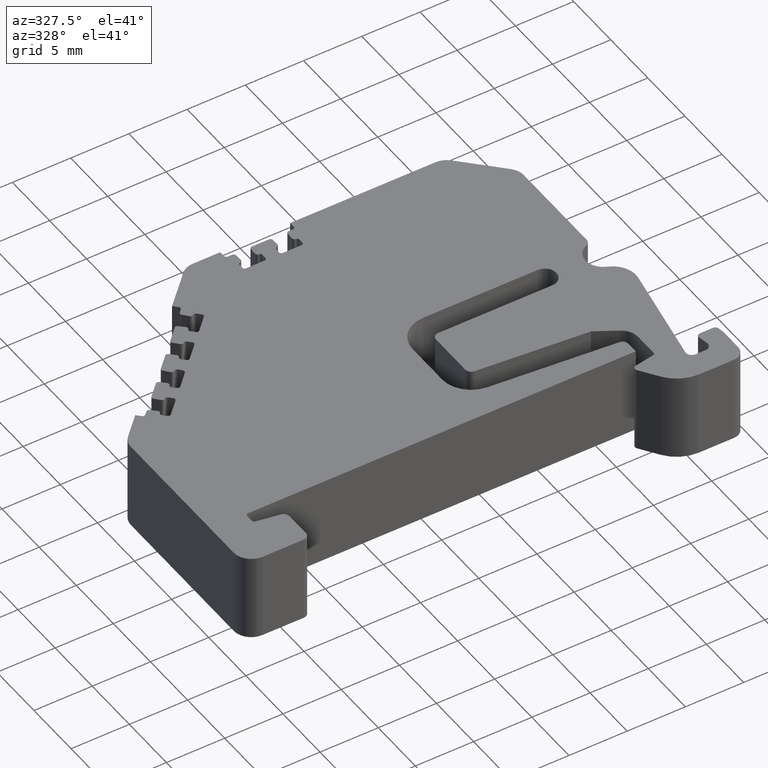
[diagram: clean part render]
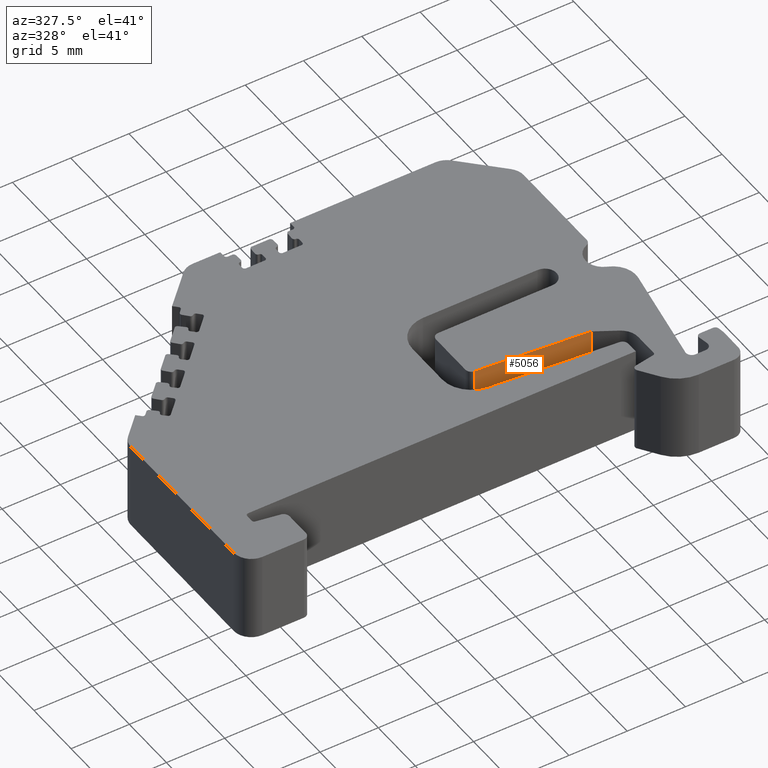
[diagram: same view with one face highlighted and labeled with its STEP entity id]
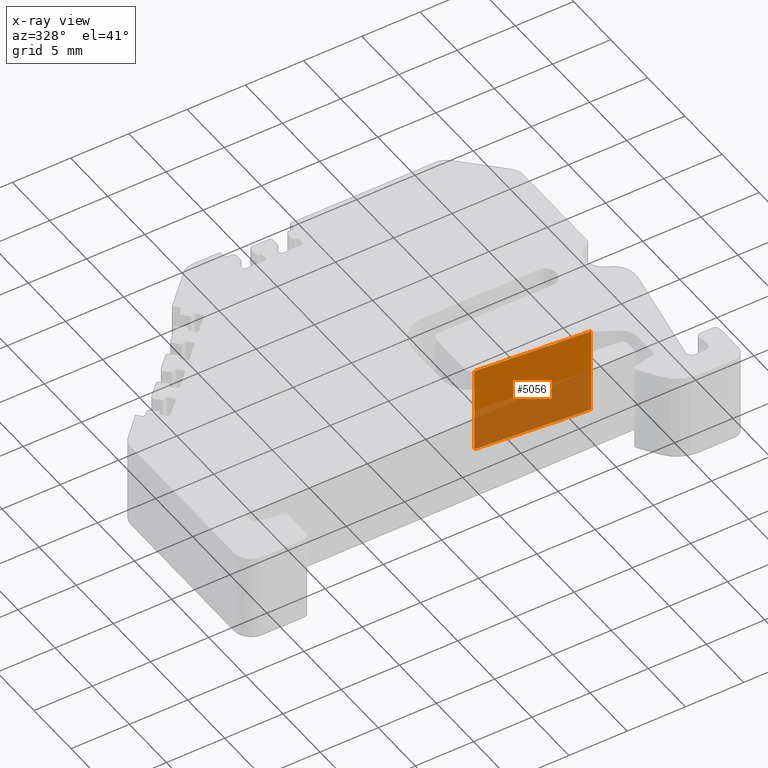
[diagram: x-ray of the same camera — body ghosted, the highlighted face saturated]
A machine part, auxiliary view. The second image highlights one B-rep face of the part: STEP entity #5056.
The next image is the same camera in x-ray: the body ghosted, the highlighted face saturated — about 50% of this face is hidden behind the body in this view.
In plain terms, the highlighted planar face has unit normal (0.0872, 0.9962, -0).
Its self-contained STEP definition (entity closure, byte-faithful):
#52 = EDGE_LOOP ( 'NONE', ( #590, #690, #624, #642 ) ) ;
#590 = ORIENTED_EDGE ( 'NONE', *, *, #4944, .F. ) ;
#624 = ORIENTED_EDGE ( 'NONE', *, *, #3754, .T. ) ;
#642 = ORIENTED_EDGE ( 'NONE', *, *, #3710, .F. ) ;
#690 = ORIENTED_EDGE ( 'NONE', *, *, #3724, .T. ) ;
#1562 = CARTESIAN_POINT ( 'NONE',  ( 16.88057767496837200, -23.60659627845687000, 7.499999999996208400 ) ) ;
#1587 = CARTESIAN_POINT ( 'NONE',  ( 26.36761550515784700, -24.43660453903999800, 3.703084826938039300E-012 ) ) ;
#1612 = CARTESIAN_POINT ( 'NONE',  ( 16.88057767496837200, -23.60659627845687000, 3.703200940341488900E-012 ) ) ;
#1650 = CARTESIAN_POINT ( 'NONE',  ( 26.36761550515782900, -24.43660453903999000, 7.499999999996208400 ) ) ;
#1905 = VERTEX_POINT ( 'NONE', #1612 ) ;
#1910 = VERTEX_POINT ( 'NONE', #1562 ) ;
#1924 = VERTEX_POINT ( 'NONE', #1587 ) ;
#1965 = VERTEX_POINT ( 'NONE', #1650 ) ;
#2477 = VECTOR ( 'NONE', #4644, 1000.000000000000100 ) ;
#2515 = VECTOR ( 'NONE', #4548, 1000.000000000000100 ) ;
#2541 = VECTOR ( 'NONE', #4727, 1000.000000000000000 ) ;
#2751 = VECTOR ( 'NONE', #5804, 1000.000000000000000 ) ;
#2938 = AXIS2_PLACEMENT_3D ( 'NONE', #3353, #3386, #3354 ) ;
#3353 = CARTESIAN_POINT ( 'NONE',  ( 26.36761550515784000, -24.43660453903998700, 3.749999999999953800 ) ) ;
#3354 = DIRECTION ( 'NONE',  ( -0.9961946980917458800, 0.08715574274765348900, 0.0000000000000000000 ) ) ;
#3364 = FACE_OUTER_BOUND ( 'NONE', #52, .T. ) ;
#3386 = DIRECTION ( 'NONE',  ( 0.08715574274765350300, 0.9961946980917459900, -0.0000000000000000000 ) ) ;
#3394 = PLANE ( 'NONE',  #2938 ) ;
#3710 = EDGE_CURVE ( 'NONE', #1910, #1965, #4561, .T. ) ;
#3724 = EDGE_CURVE ( 'NONE', #1905, #1924, #4599, .T. ) ;
#3754 = EDGE_CURVE ( 'NONE', #1924, #1965, #4720, .T. ) ;
#4547 = CARTESIAN_POINT ( 'NONE',  ( 26.36761550515783600, -24.43660453903998700, 7.499999999996208400 ) ) ;
#4548 = DIRECTION ( 'NONE',  ( 0.9961946980917458800, -0.08715574274765444700, -0.0000000000000000000 ) ) ;
#4561 = LINE ( 'NONE', #4547, #2515 ) ;
#4599 = LINE ( 'NONE', #4646, #2477 ) ;
#4644 = DIRECTION ( 'NONE',  ( 0.9961946980917457700, -0.08715574274765486300, 0.0000000000000000000 ) ) ;
#4646 = CARTESIAN_POINT ( 'NONE',  ( 16.88057767496838600, -23.60659627845686600, 3.703026770236314500E-012 ) ) ;
#4720 = LINE ( 'NONE', #4737, #2541 ) ;
#4727 = DIRECTION ( 'NONE',  ( 0.0000000000000000000, 0.0000000000000000000, 1.000000000000000000 ) ) ;
#4737 = CARTESIAN_POINT ( 'NONE',  ( 26.36761550515782600, -24.43660453904000100, 3.749999999999953800 ) ) ;
#4944 = EDGE_CURVE ( 'NONE', #1905, #1910, #5803, .T. ) ;
#5056 = ADVANCED_FACE ( 'NONE', ( #3364 ), #3394, .F. ) ;
#5782 = CARTESIAN_POINT ( 'NONE',  ( 16.88057767496838600, -23.60659627845687700, 3.749999999999953800 ) ) ;
#5803 = LINE ( 'NONE', #5782, #2751 ) ;
#5804 = DIRECTION ( 'NONE',  ( 0.0000000000000000000, 0.0000000000000000000, 1.000000000000000000 ) ) ;